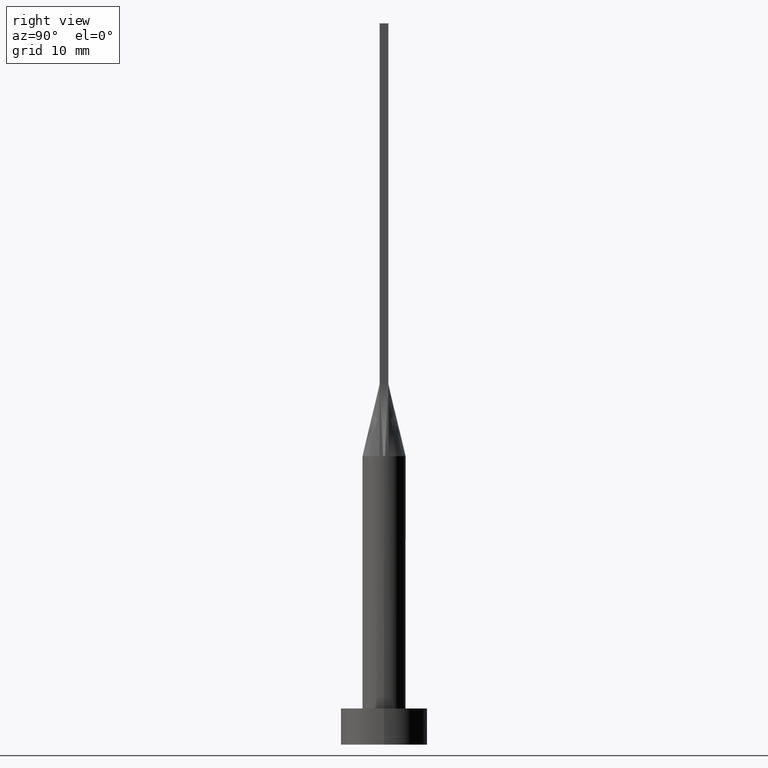
[diagram: clean part render]
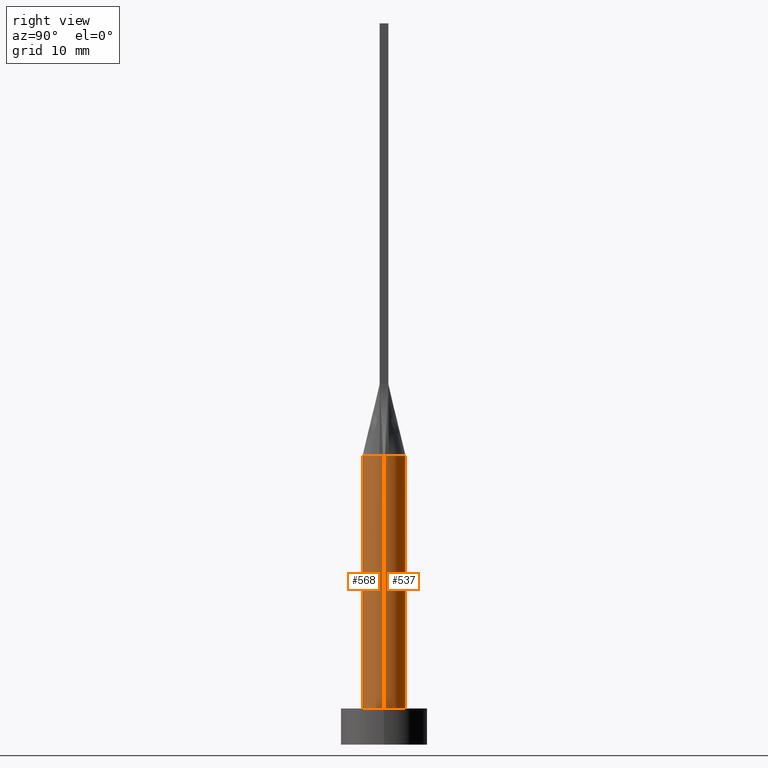
[diagram: same view with one multi-face feature highlighted, each face labeled with its STEP entity id]
A machine part, right view. The highlighted faces form ONE feature: a constant-radius fillet chain: 2 tangent blend faces with common blend radius 3 mm. The faces share edges in the B-rep.
Their STEP definitions:
[1] entity #537 (Cylinder):
#10 = AXIS2_PLACEMENT_3D ( 'NONE', #543, #289, #368 ) ;
#13 = EDGE_CURVE ( 'NONE', #116, #119, #436, .T. ) ;
#22 = CARTESIAN_POINT ( 'NONE',  ( 0.4026715616377294915, 2.999999999999999556, 40.00000000000000000 ) ) ;
#25 = CARTESIAN_POINT ( 'NONE',  ( 2.792624347712116872, 1.135030881087315979, 40.00000000000002132 ) ) ;
#38 = VECTOR ( 'NONE', #375, 1000.000000000000000 ) ;
#39 = LINE ( 'NONE', #138, #217 ) ;
#44 = EDGE_CURVE ( 'NONE', #119, #400, #108, .T. ) ;
#55 = VERTEX_POINT ( 'NONE', #247 ) ;
#57 = ORIENTED_EDGE ( 'NONE', *, *, #169, .F. ) ;
#70 = CARTESIAN_POINT ( 'NONE',  ( -0.8041209001220690489, 2.916015559847871419, 40.00000000000000000 ) ) ;
#79 = CARTESIAN_POINT ( 'NONE',  ( -1.517787371616671654, 2.616501225271827380, 40.00000000000000000 ) ) ;
#83 = ORIENTED_EDGE ( 'NONE', *, *, #224, .T. ) ;
#93 = B_SPLINE_CURVE_WITH_KNOTS ( 'NONE', 3,
 ( #163, #260, #25, #205, #387, #115, #423, #157, #22, #306, #70, #79, #384, #202, #380, #350, #430, #433 ),
 .UNSPECIFIED., .F., .F.,
 ( 4, 2, 2, 2, 2, 2, 2, 2, 4 ),
 ( 0.000000000000000000, 0.1250000000000000000, 0.2500000000000000000, 0.3750000000000000000, 0.5000000000000000000, 0.6250000000000000000, 0.7500000000000000000, 0.8750000000000000000, 1.000000000000000000 ),
 .UNSPECIFIED. ) ;
#102 = EDGE_CURVE ( 'NONE', #55, #116, #93, .T. ) ;
#106 = CIRCLE ( 'NONE', #170, 3.000000000000000444 ) ;
#108 = LINE ( 'NONE', #421, #38 ) ;
#115 = CARTESIAN_POINT ( 'NONE',  ( 1.829136458871247761, 2.402980488111650992, 39.99999999999997868 ) ) ;
#116 = VERTEX_POINT ( 'NONE', #551 ) ;
#119 = VERTEX_POINT ( 'NONE', #155 ) ;
#128 = VERTEX_POINT ( 'NONE', #509 ) ;
#138 = CARTESIAN_POINT ( 'NONE',  ( 3.000000000000000444, 3.673940397442060361E-16, 40.00000000000000000 ) ) ;
#149 = CARTESIAN_POINT ( 'NONE',  ( 0.000000000000000000, 0.000000000000000000, 5.000000000000000000 ) ) ;
#155 = CARTESIAN_POINT ( 'NONE',  ( -2.999603793582328315, -7.025298958605770567E-16, 40.00000000000000000 ) ) ;
#157 = CARTESIAN_POINT ( 'NONE',  ( 0.8041209001220689379, 2.916015559847871863, 40.00000000000000000 ) ) ;
#163 = CARTESIAN_POINT ( 'NONE',  ( 2.931303352270923757, 0.6395574164693091923, 40.00000000000000000 ) ) ;
#164 = ORIENTED_EDGE ( 'NONE', *, *, #44, .F. ) ;
#169 = EDGE_CURVE ( 'NONE', #128, #55, #511, .T. ) ;
#170 = AXIS2_PLACEMENT_3D ( 'NONE', #149, #408, #542 ) ;
#202 = CARTESIAN_POINT ( 'NONE',  ( -2.328745122427008152, 1.922758842442225280, 39.99999999999998579 ) ) ;
#204 = DIRECTION ( 'NONE',  ( -0.000000000000000000, -0.000000000000000000, -1.000000000000000000 ) ) ;
#205 = CARTESIAN_POINT ( 'NONE',  ( 2.518011668798964209, 1.657305971825549840, 40.00000000000001421 ) ) ;
#208 = AXIS2_PLACEMENT_3D ( 'NONE', #389, #382, #552 ) ;
#216 = ORIENTED_EDGE ( 'NONE', *, *, #428, .T. ) ;
#217 = VECTOR ( 'NONE', #443, 1000.000000000000000 ) ;
#220 = ORIENTED_EDGE ( 'NONE', *, *, #102, .F. ) ;
#224 = EDGE_CURVE ( 'NONE', #128, #578, #39, .T. ) ;
#247 = CARTESIAN_POINT ( 'NONE',  ( 2.931303352270923757, 0.6395574164693091923, 40.00000000000000000 ) ) ;
#250 = DIRECTION ( 'NONE',  ( -1.000000000000000000, 0.000000000000000000, 0.000000000000000000 ) ) ;
#260 = CARTESIAN_POINT ( 'NONE',  ( 2.878980386154874616, 0.8781411751610636029, 39.99999999999999289 ) ) ;
#272 = ORIENTED_EDGE ( 'NONE', *, *, #13, .F. ) ;
#289 = DIRECTION ( 'NONE',  ( 0.000000000000000000, 0.000000000000000000, 1.000000000000000000 ) ) ;
#300 = CARTESIAN_POINT ( 'NONE',  ( 3.000000000000000444, 3.673940397442060361E-16, 5.000000000000000000 ) ) ;
#306 = CARTESIAN_POINT ( 'NONE',  ( -0.4026715616377299356, 2.999999999999999556, 40.00000000000000000 ) ) ;
#350 = CARTESIAN_POINT ( 'NONE',  ( -2.792624347712117761, 1.135030881087315313, 40.00000000000001421 ) ) ;
#368 = DIRECTION ( 'NONE',  ( 1.000000000000000000, 0.000000000000000000, 0.000000000000000000 ) ) ;
#375 = DIRECTION ( 'NONE',  ( -0.000000000000000000, -0.000000000000000000, -1.000000000000000000 ) ) ;
#380 = CARTESIAN_POINT ( 'NONE',  ( -2.518011668798964653, 1.657305971825549840, 40.00000000000001421 ) ) ;
#382 = DIRECTION ( 'NONE',  ( 0.000000000000000000, 0.000000000000000000, 1.000000000000000000 ) ) ;
#384 = CARTESIAN_POINT ( 'NONE',  ( -1.829136458871247761, 2.402980488111649660, 39.99999999999999289 ) ) ;
#387 = CARTESIAN_POINT ( 'NONE',  ( 2.328745122427009040, 1.922758842442225946, 39.99999999999999289 ) ) ;
#388 = FACE_OUTER_BOUND ( 'NONE', #545, .T. ) ;
#389 = CARTESIAN_POINT ( 'NONE',  ( 0.000000000000000000, 0.000000000000000000, 40.00000000000000000 ) ) ;
#400 = VERTEX_POINT ( 'NONE', #452 ) ;
#408 = DIRECTION ( 'NONE',  ( 0.000000000000000000, 0.000000000000000000, 1.000000000000000000 ) ) ;
#421 = CARTESIAN_POINT ( 'NONE',  ( -3.000000000000000444, 0.000000000000000000, 40.00000000000000000 ) ) ;
#423 = CARTESIAN_POINT ( 'NONE',  ( 1.517787371616672099, 2.616501225271827824, 39.99999999999999289 ) ) ;
#428 = EDGE_CURVE ( 'NONE', #578, #400, #106, .T. ) ;
#430 = CARTESIAN_POINT ( 'NONE',  ( -2.878980386154874616, 0.8781411751610629368, 39.99999999999999289 ) ) ;
#433 = CARTESIAN_POINT ( 'NONE',  ( -2.931320679040856803, 0.6395611071856786012, 40.00000000000000000 ) ) ;
#436 = CIRCLE ( 'NONE', #10, 3.000000000000000444 ) ;
#443 = DIRECTION ( 'NONE',  ( -0.000000000000000000, -0.000000000000000000, -1.000000000000000000 ) ) ;
#452 = CARTESIAN_POINT ( 'NONE',  ( -3.000000000000000444, 0.000000000000000000, 5.000000000000000000 ) ) ;
#464 = CARTESIAN_POINT ( 'NONE',  ( 0.000000000000000000, 0.000000000000000000, 40.00000000000000000 ) ) ;
#466 = CYLINDRICAL_SURFACE ( 'NONE', #566, 3.000000000000000444 ) ;
#509 = CARTESIAN_POINT ( 'NONE',  ( 2.999603793582328759, 7.166726372340513095E-16, 40.00000000000000000 ) ) ;
#511 = CIRCLE ( 'NONE', #208, 3.000000000000000444 ) ;
#537 = ADVANCED_FACE ( 'NONE', ( #388 ), #466, .T. ) ;
#542 = DIRECTION ( 'NONE',  ( 1.000000000000000000, 0.000000000000000000, 0.000000000000000000 ) ) ;
#543 = CARTESIAN_POINT ( 'NONE',  ( 0.000000000000000000, 0.000000000000000000, 40.00000000000000000 ) ) ;
#545 = EDGE_LOOP ( 'NONE', ( #57, #83, #216, #164, #272, #220 ) ) ;
#551 = CARTESIAN_POINT ( 'NONE',  ( -2.931320679040856803, 0.6395611071856786012, 40.00000000000000000 ) ) ;
#552 = DIRECTION ( 'NONE',  ( 1.000000000000000000, 0.000000000000000000, 0.000000000000000000 ) ) ;
#566 = AXIS2_PLACEMENT_3D ( 'NONE', #464, #204, #250 ) ;
#578 = VERTEX_POINT ( 'NONE', #300 ) ;
[2] entity #568 (Cylinder):
#9 = CARTESIAN_POINT ( 'NONE',  ( -2.931315536094174057, -0.6395601373676296220, 40.00000000000000000 ) ) ;
#38 = VECTOR ( 'NONE', #375, 1000.000000000000000 ) ;
#39 = LINE ( 'NONE', #138, #217 ) ;
#41 = VERTEX_POINT ( 'NONE', #9 ) ;
#44 = EDGE_CURVE ( 'NONE', #119, #400, #108, .T. ) ;
#68 = AXIS2_PLACEMENT_3D ( 'NONE', #554, #154, #259 ) ;
#71 = VERTEX_POINT ( 'NONE', #347 ) ;
#101 = ORIENTED_EDGE ( 'NONE', *, *, #337, .F. ) ;
#108 = LINE ( 'NONE', #421, #38 ) ;
#114 = AXIS2_PLACEMENT_3D ( 'NONE', #159, #473, #513 ) ;
#119 = VERTEX_POINT ( 'NONE', #155 ) ;
#126 = EDGE_CURVE ( 'NONE', #119, #41, #132, .T. ) ;
#128 = VERTEX_POINT ( 'NONE', #509 ) ;
#132 = CIRCLE ( 'NONE', #114, 3.000000000000000444 ) ;
#138 = CARTESIAN_POINT ( 'NONE',  ( 3.000000000000000444, 3.673940397442060361E-16, 40.00000000000000000 ) ) ;
#141 = CIRCLE ( 'NONE', #258, 3.000000000000000444 ) ;
#150 = ORIENTED_EDGE ( 'NONE', *, *, #326, .T. ) ;
#152 = DIRECTION ( 'NONE',  ( 1.000000000000000000, -8.881784197001252323E-15, 0.000000000000000000 ) ) ;
#154 = DIRECTION ( 'NONE',  ( -0.000000000000000000, -0.000000000000000000, -1.000000000000000000 ) ) ;
#155 = CARTESIAN_POINT ( 'NONE',  ( -2.999603793582328315, -7.025298958605770567E-16, 40.00000000000000000 ) ) ;
#156 = FACE_OUTER_BOUND ( 'NONE', #279, .T. ) ;
#159 = CARTESIAN_POINT ( 'NONE',  ( 0.000000000000000000, 0.000000000000000000, 40.00000000000000000 ) ) ;
#189 = ORIENTED_EDGE ( 'NONE', *, *, #581, .F. ) ;
#209 = CARTESIAN_POINT ( 'NONE',  ( 0.000000000000000000, 0.000000000000000000, 40.00000000000000000 ) ) ;
#217 = VECTOR ( 'NONE', #443, 1000.000000000000000 ) ;
#224 = EDGE_CURVE ( 'NONE', #128, #578, #39, .T. ) ;
#237 = DIRECTION ( 'NONE',  ( 0.000000000000000000, 0.000000000000000000, 1.000000000000000000 ) ) ;
#244 = CARTESIAN_POINT ( 'NONE',  ( 0.000000000000000000, 0.000000000000000000, 5.000000000000000000 ) ) ;
#258 = AXIS2_PLACEMENT_3D ( 'NONE', #335, #237, #152 ) ;
#259 = DIRECTION ( 'NONE',  ( -1.000000000000000000, 0.000000000000000000, 0.000000000000000000 ) ) ;
#267 = CIRCLE ( 'NONE', #296, 3.000000000000000444 ) ;
#279 = EDGE_LOOP ( 'NONE', ( #523, #101, #189, #482, #309, #150 ) ) ;
#296 = AXIS2_PLACEMENT_3D ( 'NONE', #209, #510, #338 ) ;
#300 = CARTESIAN_POINT ( 'NONE',  ( 3.000000000000000444, 3.673940397442060361E-16, 5.000000000000000000 ) ) ;
#309 = ORIENTED_EDGE ( 'NONE', *, *, #44, .T. ) ;
#324 = AXIS2_PLACEMENT_3D ( 'NONE', #244, #548, #454 ) ;
#326 = EDGE_CURVE ( 'NONE', #400, #578, #531, .T. ) ;
#335 = CARTESIAN_POINT ( 'NONE',  ( 0.000000000000000000, 0.000000000000000000, 40.00000000000000000 ) ) ;
#337 = EDGE_CURVE ( 'NONE', #71, #128, #141, .T. ) ;
#338 = DIRECTION ( 'NONE',  ( 1.000000000000000000, 0.000000000000000000, 0.000000000000000000 ) ) ;
#347 = CARTESIAN_POINT ( 'NONE',  ( 2.931332910560268790, -0.6395638358681950963, 40.00000000000000000 ) ) ;
#375 = DIRECTION ( 'NONE',  ( -0.000000000000000000, -0.000000000000000000, -1.000000000000000000 ) ) ;
#400 = VERTEX_POINT ( 'NONE', #452 ) ;
#421 = CARTESIAN_POINT ( 'NONE',  ( -3.000000000000000444, 0.000000000000000000, 40.00000000000000000 ) ) ;
#443 = DIRECTION ( 'NONE',  ( -0.000000000000000000, -0.000000000000000000, -1.000000000000000000 ) ) ;
#452 = CARTESIAN_POINT ( 'NONE',  ( -3.000000000000000444, 0.000000000000000000, 5.000000000000000000 ) ) ;
#454 = DIRECTION ( 'NONE',  ( 1.000000000000000000, 0.000000000000000000, 0.000000000000000000 ) ) ;
#473 = DIRECTION ( 'NONE',  ( 0.000000000000000000, 0.000000000000000000, 1.000000000000000000 ) ) ;
#482 = ORIENTED_EDGE ( 'NONE', *, *, #126, .F. ) ;
#509 = CARTESIAN_POINT ( 'NONE',  ( 2.999603793582328759, 7.166726372340513095E-16, 40.00000000000000000 ) ) ;
#510 = DIRECTION ( 'NONE',  ( 0.000000000000000000, 0.000000000000000000, 1.000000000000000000 ) ) ;
#513 = DIRECTION ( 'NONE',  ( 1.000000000000000000, 0.000000000000000000, 0.000000000000000000 ) ) ;
#523 = ORIENTED_EDGE ( 'NONE', *, *, #224, .F. ) ;
#531 = CIRCLE ( 'NONE', #324, 3.000000000000000444 ) ;
#548 = DIRECTION ( 'NONE',  ( 0.000000000000000000, 0.000000000000000000, 1.000000000000000000 ) ) ;
#550 = CYLINDRICAL_SURFACE ( 'NONE', #68, 3.000000000000000444 ) ;
#554 = CARTESIAN_POINT ( 'NONE',  ( 0.000000000000000000, 0.000000000000000000, 40.00000000000000000 ) ) ;
#568 = ADVANCED_FACE ( 'NONE', ( #156 ), #550, .T. ) ;
#578 = VERTEX_POINT ( 'NONE', #300 ) ;
#581 = EDGE_CURVE ( 'NONE', #41, #71, #267, .T. ) ;